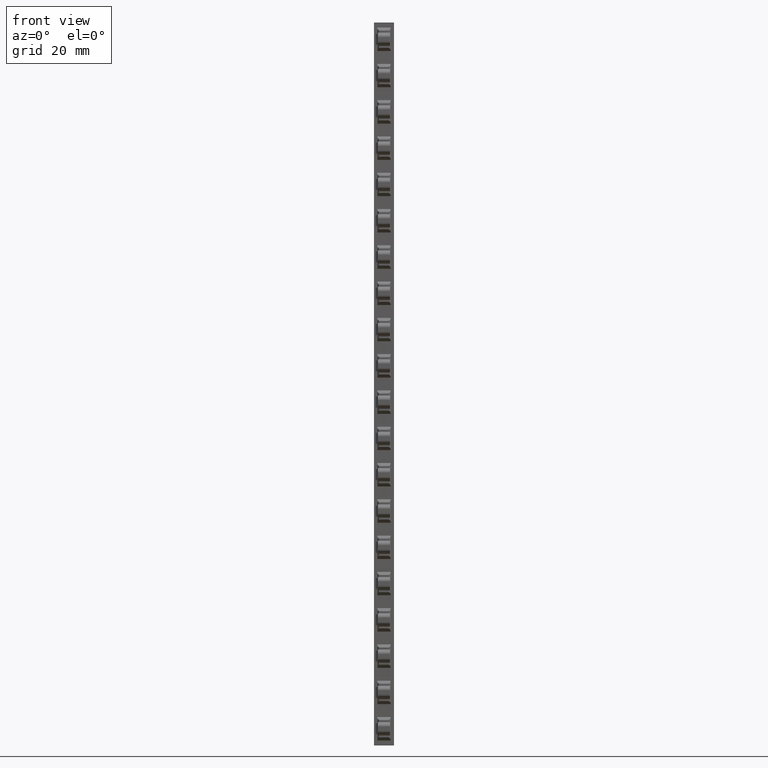
[diagram: clean part render]
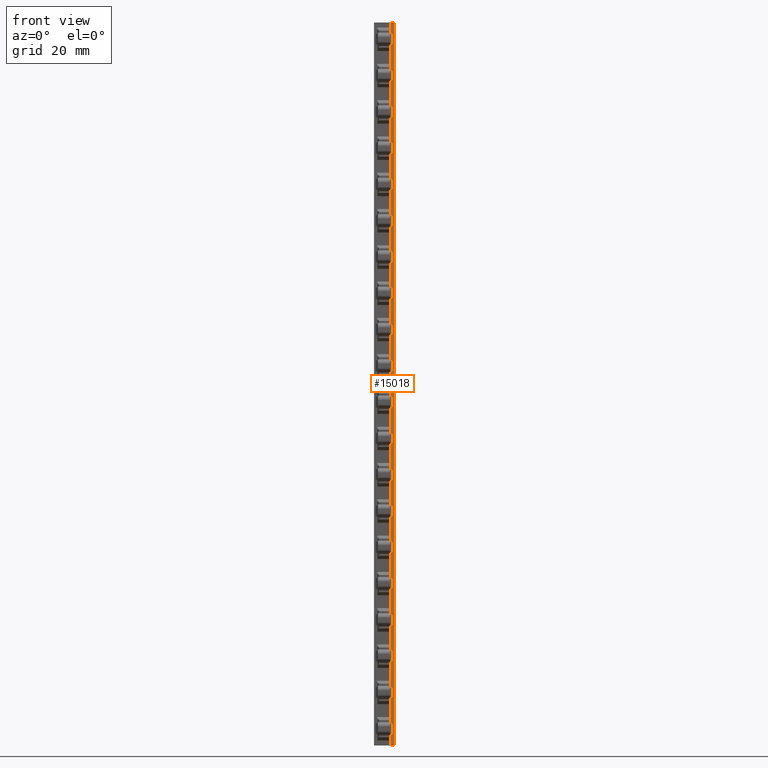
[diagram: same view with one face highlighted and labeled with its STEP entity id]
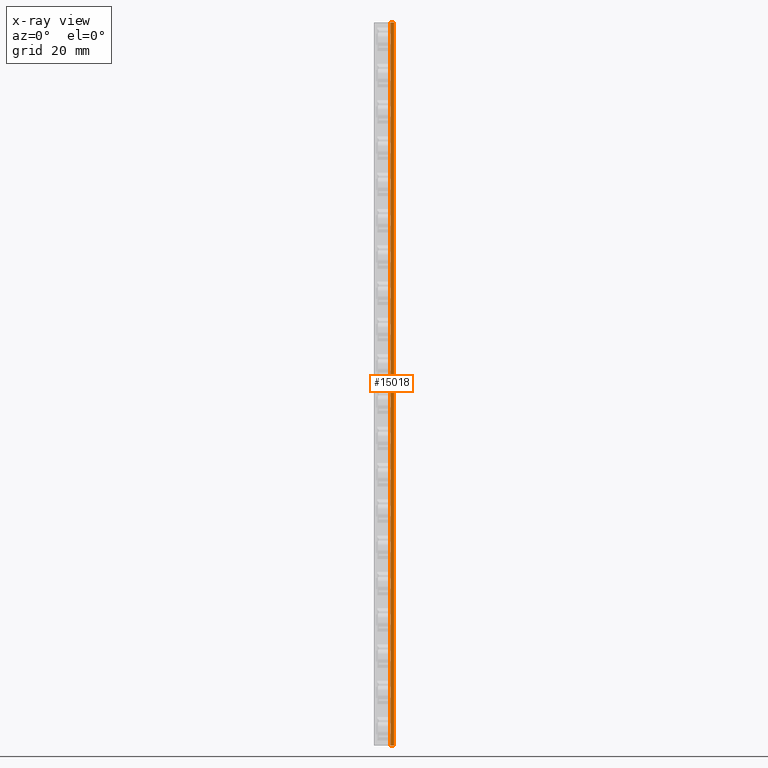
[diagram: x-ray of the same camera — body ghosted, the highlighted face saturated]
A machine part, front view. The second image highlights one B-rep face of the part: STEP entity #15018.
The next image is the same camera in x-ray: the body ghosted, the highlighted face saturated — about 0% of this face is hidden behind the body in this view.
In plain terms, the highlighted planar face has unit normal (-0, -1, 0).
Its self-contained STEP definition (entity closure, byte-faithful):
#1751 = AXIS2_PLACEMENT_3D ( 'NONE', #22592, #22616, #22578 ) ;
#2325 = VECTOR ( 'NONE', #21887, 1000.000000000000000 ) ;
#2573 = VECTOR ( 'NONE', #20577, 1000.000000000000000 ) ;
#2634 = VECTOR ( 'NONE', #20793, 1000.000000000000000 ) ;
#2636 = VECTOR ( 'NONE', #20783, 1000.000000000000000 ) ;
#3387 = CARTESIAN_POINT ( 'NONE',  ( 112.9952529172783200, 259.1101602476009000, 9.639822679386011100 ) ) ;
#3397 = CARTESIAN_POINT ( 'NONE',  ( 112.9952529172782500, 259.1101602476019800, 173.0398226793859900 ) ) ;
#3648 = CARTESIAN_POINT ( 'NONE',  ( 112.2452529172783500, 259.1101602476019800, 173.0398226793859900 ) ) ;
#3753 = CARTESIAN_POINT ( 'NONE',  ( 112.2452529172785200, 259.1101602476009000, 9.639822679385984500 ) ) ;
#9964 = EDGE_LOOP ( 'NONE', ( #14932, #14989, #15005, #15099 ) ) ;
#14932 = ORIENTED_EDGE ( 'NONE', *, *, #16581, .T. ) ;
#14989 = ORIENTED_EDGE ( 'NONE', *, *, #16729, .F. ) ;
#15005 = ORIENTED_EDGE ( 'NONE', *, *, #16713, .T. ) ;
#15018 = ADVANCED_FACE ( 'NONE', ( #22625 ), #22594, .T. ) ;
#15099 = ORIENTED_EDGE ( 'NONE', *, *, #16242, .T. ) ;
#15453 = VERTEX_POINT ( 'NONE', #3387 ) ;
#15472 = VERTEX_POINT ( 'NONE', #3397 ) ;
#15717 = VERTEX_POINT ( 'NONE', #3648 ) ;
#15801 = VERTEX_POINT ( 'NONE', #3753 ) ;
#16242 = EDGE_CURVE ( 'NONE', #15453, #15472, #21864, .T. ) ;
#16581 = EDGE_CURVE ( 'NONE', #15472, #15717, #20542, .T. ) ;
#16713 = EDGE_CURVE ( 'NONE', #15801, #15453, #20771, .T. ) ;
#16729 = EDGE_CURVE ( 'NONE', #15801, #15717, #20795, .T. ) ;
#20542 = LINE ( 'NONE', #20558, #2573 ) ;
#20558 = CARTESIAN_POINT ( 'NONE',  ( 112.2452529172785900, 259.1101602476019800, 173.0398226793859900 ) ) ;
#20577 = DIRECTION ( 'NONE',  ( -1.000000000000000000, 0.0000000000000000000, -7.193572994224081300E-015 ) ) ;
#20771 = LINE ( 'NONE', #20776, #2636 ) ;
#20776 = CARTESIAN_POINT ( 'NONE',  ( 112.7452529172779900, 259.1101602476009000, 9.639822679386011100 ) ) ;
#20783 = DIRECTION ( 'NONE',  ( 1.000000000000000000, -1.448504331889322000E-042, 2.816989510675985000E-070 ) ) ;
#20791 = CARTESIAN_POINT ( 'NONE',  ( 112.2452529172779900, 259.1101602476019300, 214.6398226793859900 ) ) ;
#20793 = DIRECTION ( 'NONE',  ( -7.193572994224081300E-015, -1.901732946337204600E-028, 1.000000000000000000 ) ) ;
#20795 = LINE ( 'NONE', #20791, #2634 ) ;
#21864 = LINE ( 'NONE', #21879, #2325 ) ;
#21879 = CARTESIAN_POINT ( 'NONE',  ( 112.9952529172783200, 259.1101602476019300, 193.7370111674605100 ) ) ;
#21887 = DIRECTION ( 'NONE',  ( -0.0000000000000000000, 1.944757394685670000E-028, 1.000000000000000000 ) ) ;
#22578 = DIRECTION ( 'NONE',  ( 0.0000000000000000000, -1.944757394685670000E-028, -1.000000000000000000 ) ) ;
#22592 = CARTESIAN_POINT ( 'NONE',  ( 112.7452529172779900, 259.1101602476019300, 193.7370111674605100 ) ) ;
#22594 = PLANE ( 'NONE',  #1751 ) ;
#22616 = DIRECTION ( 'NONE',  ( -1.448504331889322000E-042, -1.000000000000000000, 1.944757394685670000E-028 ) ) ;
#22625 = FACE_OUTER_BOUND ( 'NONE', #9964, .T. ) ;